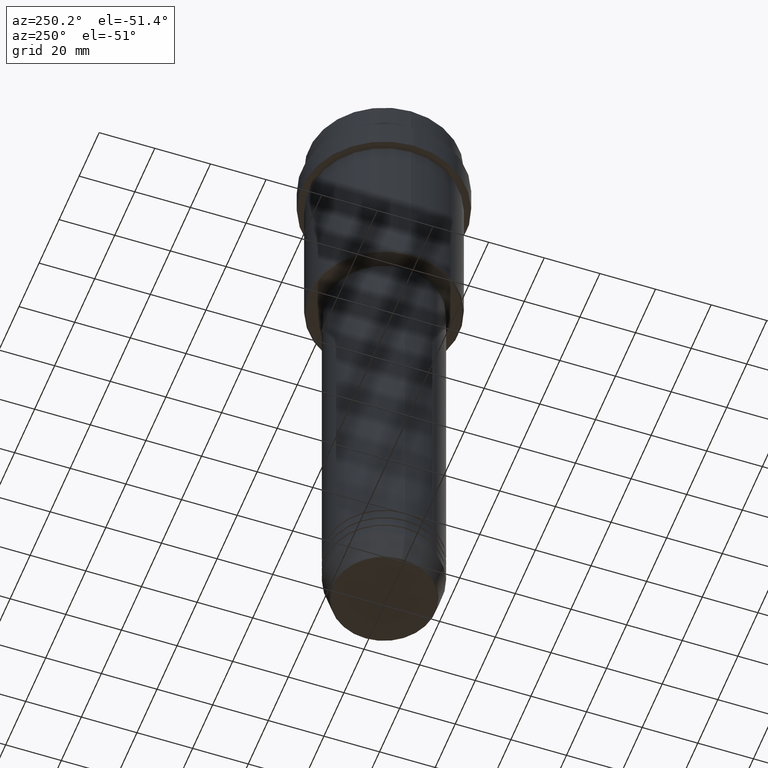
[diagram: clean part render]
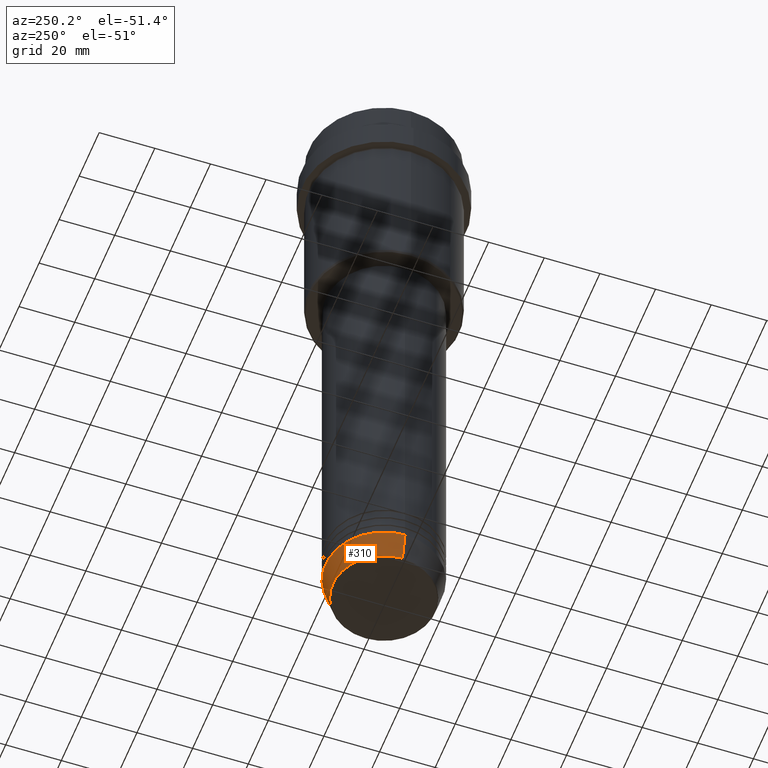
[diagram: same view with one face highlighted and labeled with its STEP entity id]
A machine part, auxiliary view. The second image highlights one B-rep face of the part: STEP entity #310.
In plain terms, the highlighted conical surface has half-angle 15 deg.
Its self-contained STEP definition (entity closure, byte-faithful):
#25 = CARTESIAN_POINT ( 'NONE',  ( 21.00000000000000000, 0.000000000000000000, -223.0000000000000284 ) ) ;
#44 = CARTESIAN_POINT ( 'NONE',  ( 21.00000000000000000, 0.000000000000000000, -223.0000000000000284 ) ) ;
#78 = DIRECTION ( 'NONE',  ( -0.000000000000000000, -0.000000000000000000, 1.000000000000000000 ) ) ;
#106 = EDGE_CURVE ( 'NONE', #206, #1300, #775, .T. ) ;
#114 = ORIENTED_EDGE ( 'NONE', *, *, #981, .T. ) ;
#118 = DIRECTION ( 'NONE',  ( 1.000000000000000000, 0.000000000000000000, 0.000000000000000000 ) ) ;
#206 = VERTEX_POINT ( 'NONE', #400 ) ;
#221 = VERTEX_POINT ( 'NONE', #44 ) ;
#244 = DIRECTION ( 'NONE',  ( -0.000000000000000000, -0.000000000000000000, 1.000000000000000000 ) ) ;
#310 = ADVANCED_FACE ( 'NONE', ( #819 ), #928, .T. ) ;
#346 = DIRECTION ( 'NONE',  ( -0.2588190451025205729, 3.169619151431761860E-17, 0.9659258262890683122 ) ) ;
#400 = CARTESIAN_POINT ( 'NONE',  ( -18.41980749484382329, 2.413767053578266669E-15, -232.6294095225512990 ) ) ;
#449 = CARTESIAN_POINT ( 'NONE',  ( 0.000000000000000000, 0.000000000000000000, -232.6294095225512990 ) ) ;
#512 = DIRECTION ( 'NONE',  ( 1.000000000000000000, 0.000000000000000000, 0.000000000000000000 ) ) ;
#531 = DIRECTION ( 'NONE',  ( 1.000000000000000000, 0.000000000000000000, 0.000000000000000000 ) ) ;
#565 = CARTESIAN_POINT ( 'NONE',  ( -21.00000000000000000, 2.571758278209441661E-15, -223.0000000000000284 ) ) ;
#590 = EDGE_CURVE ( 'NONE', #1282, #221, #880, .T. ) ;
#631 = CARTESIAN_POINT ( 'NONE',  ( -21.00000000000000000, 2.571758278209441661E-15, -223.0000000000000284 ) ) ;
#636 = VECTOR ( 'NONE', #779, 1000.000000000000114 ) ;
#691 = CIRCLE ( 'NONE', #988, 21.00000000000000000 ) ;
#711 = DIRECTION ( 'NONE',  ( -0.000000000000000000, -0.000000000000000000, 1.000000000000000000 ) ) ;
#775 = LINE ( 'NONE', #565, #1085 ) ;
#779 = DIRECTION ( 'NONE',  ( 0.2588190451025205729, 0.000000000000000000, 0.9659258262890683122 ) ) ;
#819 = FACE_OUTER_BOUND ( 'NONE', #867, .T. ) ;
#835 = ORIENTED_EDGE ( 'NONE', *, *, #1272, .F. ) ;
#837 = CARTESIAN_POINT ( 'NONE',  ( 0.000000000000000000, 0.000000000000000000, -223.0000000000000284 ) ) ;
#867 = EDGE_LOOP ( 'NONE', ( #114, #948, #835, #1277 ) ) ;
#880 = LINE ( 'NONE', #25, #636 ) ;
#928 = CONICAL_SURFACE ( 'NONE', #976, 21.00000000000000000, 0.2617993877991492413 ) ;
#942 = CIRCLE ( 'NONE', #1411, 18.41980749484382329 ) ;
#948 = ORIENTED_EDGE ( 'NONE', *, *, #106, .T. ) ;
#976 = AXIS2_PLACEMENT_3D ( 'NONE', #1267, #78, #512 ) ;
#981 = EDGE_CURVE ( 'NONE', #1282, #206, #942, .T. ) ;
#988 = AXIS2_PLACEMENT_3D ( 'NONE', #837, #711, #531 ) ;
#1085 = VECTOR ( 'NONE', #346, 1000.000000000000114 ) ;
#1267 = CARTESIAN_POINT ( 'NONE',  ( 0.000000000000000000, 0.000000000000000000, -223.0000000000000284 ) ) ;
#1272 = EDGE_CURVE ( 'NONE', #221, #1300, #691, .T. ) ;
#1277 = ORIENTED_EDGE ( 'NONE', *, *, #590, .F. ) ;
#1282 = VERTEX_POINT ( 'NONE', #1288 ) ;
#1288 = CARTESIAN_POINT ( 'NONE',  ( 18.41980749484382329, 0.000000000000000000, -232.6294095225512990 ) ) ;
#1300 = VERTEX_POINT ( 'NONE', #631 ) ;
#1411 = AXIS2_PLACEMENT_3D ( 'NONE', #449, #244, #118 ) ;